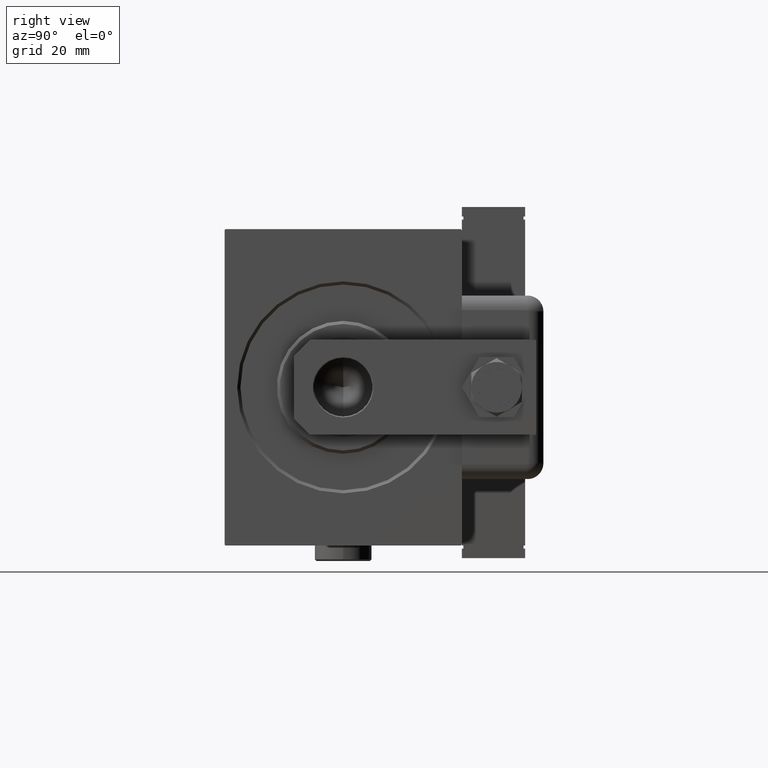
[diagram: clean part render]
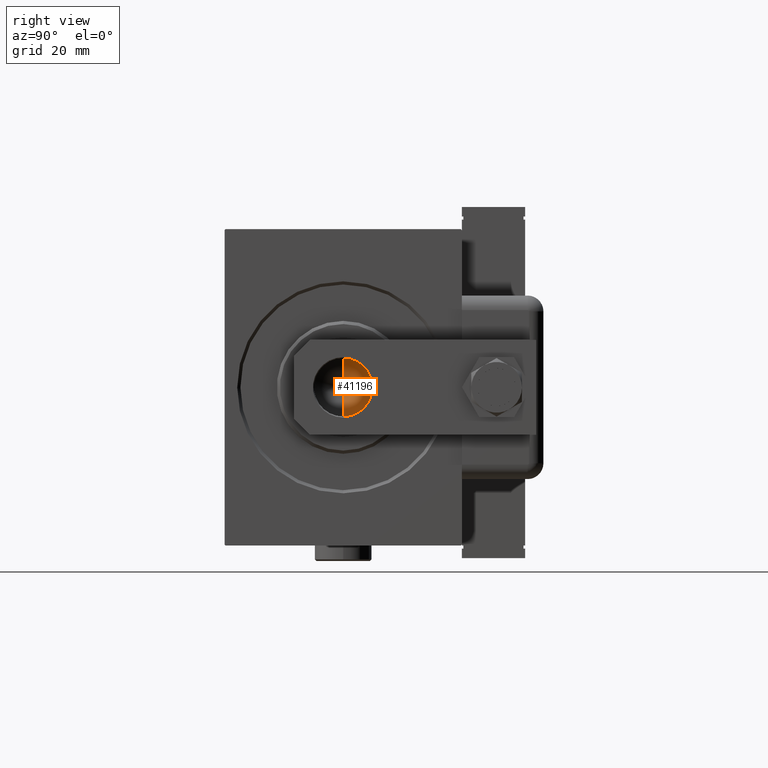
[diagram: same view with one face highlighted and labeled with its STEP entity id]
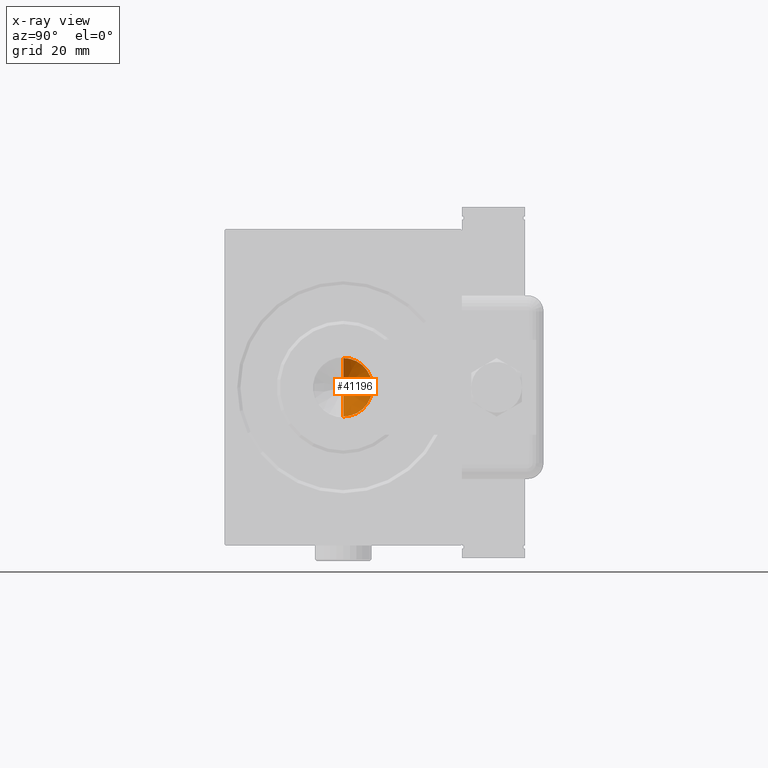
[diagram: x-ray of the same camera — body ghosted, the highlighted face saturated]
A machine part, right view. The second image highlights one B-rep face of the part: STEP entity #41196.
The next image is the same camera in x-ray: the body ghosted, the highlighted face saturated — about 0% of this face is hidden behind the body in this view.
In plain terms, the highlighted conical surface has half-angle 59 deg.
Its self-contained STEP definition (entity closure, byte-faithful):
#701 = CONICAL_SURFACE ( 'NONE', #8454, 9.249999999999994671, 1.029744258676654756 ) ;
#1135 = VECTOR ( 'NONE', #24342, 1000.000000000000000 ) ;
#2214 = CARTESIAN_POINT ( 'NONE',  ( 9.249999999999994671, 0.000000000000000000, 96.00000000000000000 ) ) ;
#2801 = EDGE_CURVE ( 'NONE', #3625, #4376, #6121, .T. ) ;
#2960 = CARTESIAN_POINT ( 'NONE',  ( 0.000000000000000000, 0.000000000000000000, 96.00000000000000000 ) ) ;
#3322 = CARTESIAN_POINT ( 'NONE',  ( -9.249999999999994671, 1.132798289211300909E-15, 96.00000000000000000 ) ) ;
#3625 = VERTEX_POINT ( 'NONE', #31698 ) ;
#4281 = EDGE_CURVE ( 'NONE', #38435, #4376, #30180, .T. ) ;
#4376 = VERTEX_POINT ( 'NONE', #3322 ) ;
#6121 = LINE ( 'NONE', #25243, #1135 ) ;
#8454 = AXIS2_PLACEMENT_3D ( 'NONE', #2960, #31508, #30598 ) ;
#14655 = AXIS2_PLACEMENT_3D ( 'NONE', #43750, #28552, #38583 ) ;
#17554 = ORIENTED_EDGE ( 'NONE', *, *, #58141, .T. ) ;
#19432 = VECTOR ( 'NONE', #44059, 1000.000000000000000 ) ;
#21773 = FACE_OUTER_BOUND ( 'NONE', #55295, .T. ) ;
#24342 = DIRECTION ( 'NONE',  ( -0.8571673007021124446, 1.049727191138618819E-16, 0.5150380749100539335 ) ) ;
#25243 = CARTESIAN_POINT ( 'NONE',  ( -9.249999999999994671, 1.132798289211300909E-15, 96.00000000000000000 ) ) ;
#28552 = DIRECTION ( 'NONE',  ( -0.000000000000000000, -0.000000000000000000, 1.000000000000000000 ) ) ;
#30043 = LINE ( 'NONE', #48610, #19432 ) ;
#30180 = CIRCLE ( 'NONE', #14655, 9.249999999999994671 ) ;
#30598 = DIRECTION ( 'NONE',  ( 1.000000000000000000, 0.000000000000000000, 0.000000000000000000 ) ) ;
#31508 = DIRECTION ( 'NONE',  ( -0.000000000000000000, -0.000000000000000000, 1.000000000000000000 ) ) ;
#31698 = CARTESIAN_POINT ( 'NONE',  ( -6.793016015247754405E-15, 0.000000000000000000, 90.44203927399507847 ) ) ;
#38435 = VERTEX_POINT ( 'NONE', #2214 ) ;
#38583 = DIRECTION ( 'NONE',  ( 1.000000000000000000, 0.000000000000000000, 0.000000000000000000 ) ) ;
#41196 = ADVANCED_FACE ( 'NONE', ( #21773 ), #701, .F. ) ;
#43750 = CARTESIAN_POINT ( 'NONE',  ( 0.000000000000000000, 0.000000000000000000, 96.00000000000000000 ) ) ;
#44059 = DIRECTION ( 'NONE',  ( 0.8571673007021124446, 0.000000000000000000, 0.5150380749100539335 ) ) ;
#45888 = ORIENTED_EDGE ( 'NONE', *, *, #4281, .T. ) ;
#48610 = CARTESIAN_POINT ( 'NONE',  ( 9.249999999999994671, 0.000000000000000000, 96.00000000000000000 ) ) ;
#50946 = ORIENTED_EDGE ( 'NONE', *, *, #2801, .F. ) ;
#55295 = EDGE_LOOP ( 'NONE', ( #50946, #17554, #45888 ) ) ;
#58141 = EDGE_CURVE ( 'NONE', #3625, #38435, #30043, .T. ) ;